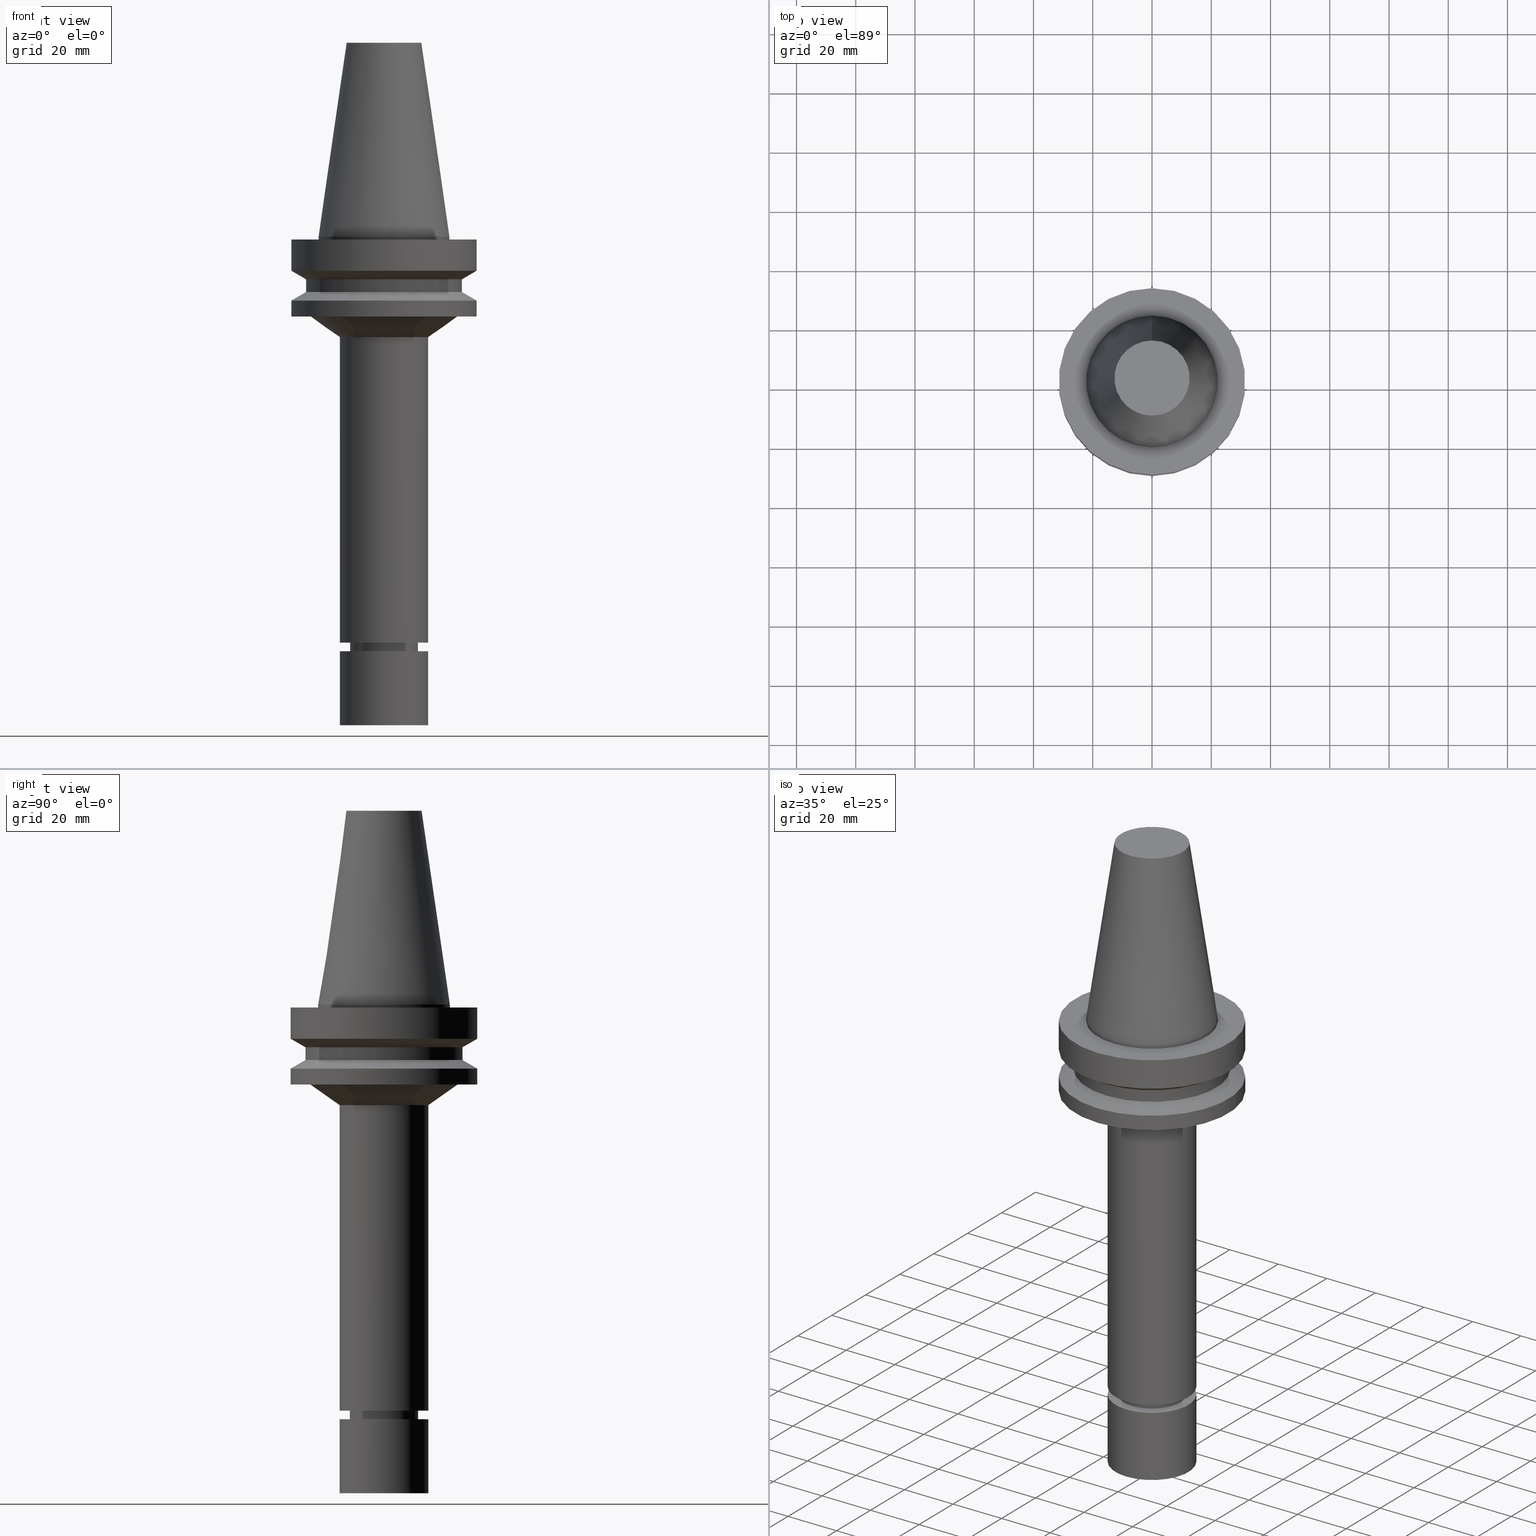
[diagram: canonical four-view strip — front | top / right | iso, engineering-drawing reading convention]
A machine part, canonical four-view strip (front | top / right | iso — engineering-drawing reading convention). The complete STEP part file that produces these views, byte-faithful:
ISO-10303-21;
HEADER;
FILE_DESCRIPTION((''),'1');
FILE_NAME('V:/90_\X2\53D65F9730C730FC30BF\X0\/00_\X2\6DE18DEF30C730FC30BF\X0\/ALL/BBT-BKUS\X2\FF76FF80FF9BFF78FF9E752852A05DE556F3\X0\201801/BBT40-MEGAER/BBT40-MEGAER16-165NL.stp','2018-02-07T01:51:51',(''),(''),'Spatial Interop R21 SP3','Kubotek KeyCreator 2011 V10.0.2 (22737)',' ');
FILE_SCHEMA(('automotive_design'));
ENDSEC;
DATA;
#1=MECHANICAL_DESIGN_GEOMETRIC_PRESENTATION_REPRESENTATION(' ',(#14,#15,#16,#17,#18,#19,#20,#21,#22,#23,#24,#25,#26,#27,#28,#29,#30,#31,#32,#33,#34,#35,#36,#37,#38,#39,#40,#41,#42,#43,#44,#45,#46,#47,#48,#49,#50,#51,#52,#53,#54,#55),#10);
#2=PRODUCT_DEFINITION_CONTEXT('',#56,'design');
#3=APPLICATION_PROTOCOL_DEFINITION('INTERNATIONAL STANDARD','automotive_design',1994,#56);
#4=PRODUCT_CATEGORY_RELATIONSHIP('NONE','NONE',#57,#58);
#5=SHAPE_DEFINITION_REPRESENTATION(#59,#60);
#6=PRODUCT_DEFINITION_CONTEXT('',#61,'design');
#7=APPLICATION_PROTOCOL_DEFINITION('INTERNATIONAL STANDARD','automotive_design',1994,#61);
#8=PRODUCT_CATEGORY_RELATIONSHIP('NONE','NONE',#62,#63);
#9=SHAPE_DEFINITION_REPRESENTATION(#64,#65);
#10= (GEOMETRIC_REPRESENTATION_CONTEXT(3)GLOBAL_UNCERTAINTY_ASSIGNED_CONTEXT((#68))GLOBAL_UNIT_ASSIGNED_CONTEXT((#70,#71,#72))REPRESENTATION_CONTEXT('NONE','WORKSPACE'));
#14=STYLED_ITEM('',(#74,#75),#76);
#15=STYLED_ITEM('',(#77),#78);
#16=STYLED_ITEM('',(#79,#80),#81);
#17=STYLED_ITEM('',(#82,#83),#84);
#18=STYLED_ITEM('',(#85,#86),#87);
#19=STYLED_ITEM('',(#88,#89),#90);
#20=STYLED_ITEM('',(#91,#92),#93);
#21=STYLED_ITEM('',(#94),#95);
#22=STYLED_ITEM('',(#96),#97);
#23=STYLED_ITEM('',(#98),#99);
#24=STYLED_ITEM('',(#100),#101);
#25=STYLED_ITEM('',(#102,#103),#104);
#26=STYLED_ITEM('',(#105,#106),#107);
#27=STYLED_ITEM('',(#108),#109);
#28=STYLED_ITEM('',(#110,#111),#112);
#29=STYLED_ITEM('',(#113,#114),#115);
#30=STYLED_ITEM('',(#116,#117),#118);
#31=STYLED_ITEM('',(#119,#120),#121);
#32=STYLED_ITEM('',(#122,#123),#124);
#33=STYLED_ITEM('',(#125),#126);
#34=STYLED_ITEM('',(#127),#128);
#35=STYLED_ITEM('',(#129),#130);
#36=STYLED_ITEM('',(#131),#132);
#37=STYLED_ITEM('',(#133,#134),#135);
#38=STYLED_ITEM('',(#136,#137),#138);
#39=STYLED_ITEM('',(#139),#140);
#40=STYLED_ITEM('',(#141),#142);
#41=STYLED_ITEM('',(#143),#144);
#42=STYLED_ITEM('',(#145,#146),#147);
#43=STYLED_ITEM('',(#148),#149);
#44=STYLED_ITEM('',(#150,#151),#152);
#45=STYLED_ITEM('',(#153),#154);
#46=STYLED_ITEM('',(#155),#156);
#47=STYLED_ITEM('',(#157,#158),#159);
#48=STYLED_ITEM('',(#160,#161),#162);
#49=STYLED_ITEM('',(#163,#164),#165);
#50=STYLED_ITEM('',(#166,#167),#168);
#51=STYLED_ITEM('',(#169),#170);
#52=STYLED_ITEM('',(#171),#172);
#53=STYLED_ITEM('',(#173,#174),#175);
#54=STYLED_ITEM('',(#176,#177),#178);
#55=STYLED_ITEM('',(#179),#180);
#56=APPLICATION_CONTEXT(' ');
#57=PRODUCT_CATEGORY('part','NONE');
#58=PRODUCT_RELATED_PRODUCT_CATEGORY('detail',' ',(#181));
#59=PRODUCT_DEFINITION_SHAPE('NONE','NONE',#182);
#60=ADVANCED_BREP_SHAPE_REPRESENTATION('Unnamed[1]',(#84,#183),#10);
#61=APPLICATION_CONTEXT(' ');
#62=PRODUCT_CATEGORY('part','NONE');
#63=PRODUCT_RELATED_PRODUCT_CATEGORY('detail',' ',(#184));
#64=PRODUCT_DEFINITION_SHAPE('NONE','NONE',#185);
#65=ADVANCED_BREP_SHAPE_REPRESENTATION('Unnamed[1]',(#81,#186),#10);
#68=UNCERTAINTY_MEASURE_WITH_UNIT(LENGTH_MEASURE(1.0E-006),#70,'','');
#70= (CONVERSION_BASED_UNIT('MILLIMETRE',#189)LENGTH_UNIT()NAMED_UNIT(#192));
#71= (NAMED_UNIT(#194)PLANE_ANGLE_UNIT()SI_UNIT($,.RADIAN.));
#72= (NAMED_UNIT(#194)SOLID_ANGLE_UNIT()SI_UNIT($,.STERADIAN.));
#74=PRESENTATION_STYLE_ASSIGNMENT((#200));
#75=PRESENTATION_STYLE_ASSIGNMENT((#201));
#76=ADVANCED_FACE('Unnamed[1]',(#202,#203),#204,.T.);
#77=PRESENTATION_STYLE_ASSIGNMENT((#205));
#78=EDGE_CURVE('Unnamed[1]',#206,#206,#207,.T.);
#79=PRESENTATION_STYLE_ASSIGNMENT((#208));
#80=PRESENTATION_STYLE_ASSIGNMENT((#209));
#81=MANIFOLD_SOLID_BREP('Unnamed[1]',#210);
#82=PRESENTATION_STYLE_ASSIGNMENT((#211));
#83=PRESENTATION_STYLE_ASSIGNMENT((#212));
#84=MANIFOLD_SOLID_BREP('Unnamed[1]',#213);
#85=PRESENTATION_STYLE_ASSIGNMENT((#214));
#86=PRESENTATION_STYLE_ASSIGNMENT((#215));
#87=ADVANCED_FACE('Unnamed[1]',(#216,#217),#218,.T.);
#88=PRESENTATION_STYLE_ASSIGNMENT((#219));
#89=PRESENTATION_STYLE_ASSIGNMENT((#220));
#90=ADVANCED_FACE('Unnamed[1]',(#221,#222),#223,.T.);
#91=PRESENTATION_STYLE_ASSIGNMENT((#224));
#92=PRESENTATION_STYLE_ASSIGNMENT((#225));
#93=ADVANCED_FACE('Unnamed[1]',(#226,#227),#228,.T.);
#94=PRESENTATION_STYLE_ASSIGNMENT((#229));
#95=EDGE_CURVE('Unnamed[1]',#230,#230,#231,.T.);
#96=PRESENTATION_STYLE_ASSIGNMENT((#232));
#97=EDGE_CURVE('Unnamed[1]',#233,#233,#234,.T.);
#98=PRESENTATION_STYLE_ASSIGNMENT((#235));
#99=EDGE_CURVE('Unnamed[1]',#236,#236,#237,.T.);
#100=PRESENTATION_STYLE_ASSIGNMENT((#238));
#101=EDGE_CURVE('Unnamed[1]',#239,#239,#240,.T.);
#102=PRESENTATION_STYLE_ASSIGNMENT((#241));
#103=PRESENTATION_STYLE_ASSIGNMENT((#242));
#104=ADVANCED_FACE('Unnamed[1]',(#243,#244),#245,.T.);
#105=PRESENTATION_STYLE_ASSIGNMENT((#246));
#106=PRESENTATION_STYLE_ASSIGNMENT((#247));
#107=ADVANCED_FACE('Unnamed[1]',(#248),#249,.T.);
#108=PRESENTATION_STYLE_ASSIGNMENT((#250));
#109=EDGE_CURVE('Unnamed[1]',#251,#251,#252,.T.);
#110=PRESENTATION_STYLE_ASSIGNMENT((#253));
#111=PRESENTATION_STYLE_ASSIGNMENT((#254));
#112=ADVANCED_FACE('Unnamed[1]',(#255,#256),#257,.T.);
#113=PRESENTATION_STYLE_ASSIGNMENT((#258));
#114=PRESENTATION_STYLE_ASSIGNMENT((#259));
#115=ADVANCED_FACE('Unnamed[1]',(#260,#261),#262,.T.);
#116=PRESENTATION_STYLE_ASSIGNMENT((#263));
#117=PRESENTATION_STYLE_ASSIGNMENT((#264));
#118=ADVANCED_FACE('Unnamed[1]',(#265,#266),#267,.T.);
#119=PRESENTATION_STYLE_ASSIGNMENT((#268));
#120=PRESENTATION_STYLE_ASSIGNMENT((#269));
#121=ADVANCED_FACE('Unnamed[1]',(#270,#271),#272,.T.);
#122=PRESENTATION_STYLE_ASSIGNMENT((#273));
#123=PRESENTATION_STYLE_ASSIGNMENT((#274));
#124=ADVANCED_FACE('Unnamed[1]',(#275,#276),#277,.T.);
#125=PRESENTATION_STYLE_ASSIGNMENT((#278));
#126=EDGE_CURVE('Unnamed[1]',#279,#279,#280,.T.);
#127=PRESENTATION_STYLE_ASSIGNMENT((#281));
#128=EDGE_CURVE('Unnamed[1]',#282,#282,#283,.T.);
#129=PRESENTATION_STYLE_ASSIGNMENT((#284));
#130=EDGE_CURVE('Unnamed[1]',#285,#285,#286,.T.);
#131=PRESENTATION_STYLE_ASSIGNMENT((#287));
#132=EDGE_CURVE('Unnamed[1]',#288,#288,#289,.T.);
#133=PRESENTATION_STYLE_ASSIGNMENT((#290));
#134=PRESENTATION_STYLE_ASSIGNMENT((#291));
#135=ADVANCED_FACE('Unnamed[1]',(#292),#293,.T.);
#136=PRESENTATION_STYLE_ASSIGNMENT((#294));
#137=PRESENTATION_STYLE_ASSIGNMENT((#295));
#138=ADVANCED_FACE('Unnamed[1]',(#296),#297,.T.);
#139=PRESENTATION_STYLE_ASSIGNMENT((#298));
#140=EDGE_CURVE('Unnamed[1]',#299,#299,#300,.T.);
#141=PRESENTATION_STYLE_ASSIGNMENT((#301));
#142=EDGE_CURVE('Unnamed[1]',#302,#302,#303,.T.);
#143=PRESENTATION_STYLE_ASSIGNMENT((#304));
#144=EDGE_CURVE('Unnamed[1]',#305,#305,#306,.T.);
#145=PRESENTATION_STYLE_ASSIGNMENT((#307));
#146=PRESENTATION_STYLE_ASSIGNMENT((#308));
#147=ADVANCED_FACE('Unnamed[1]',(#309,#310),#311,.T.);
#148=PRESENTATION_STYLE_ASSIGNMENT((#312));
#149=EDGE_CURVE('Unnamed[1]',#313,#313,#314,.T.);
#150=PRESENTATION_STYLE_ASSIGNMENT((#315));
#151=PRESENTATION_STYLE_ASSIGNMENT((#316));
#152=ADVANCED_FACE('Unnamed[1]',(#317),#318,.T.);
#153=PRESENTATION_STYLE_ASSIGNMENT((#319));
#154=EDGE_CURVE('Unnamed[1]',#320,#320,#321,.T.);
#155=PRESENTATION_STYLE_ASSIGNMENT((#322));
#156=EDGE_CURVE('Unnamed[1]',#323,#323,#324,.T.);
#157=PRESENTATION_STYLE_ASSIGNMENT((#325));
#158=PRESENTATION_STYLE_ASSIGNMENT((#326));
#159=ADVANCED_FACE('Unnamed[1]',(#327,#328),#329,.T.);
#160=PRESENTATION_STYLE_ASSIGNMENT((#330));
#161=PRESENTATION_STYLE_ASSIGNMENT((#331));
#162=ADVANCED_FACE('Unnamed[1]',(#332,#333),#334,.T.);
#163=PRESENTATION_STYLE_ASSIGNMENT((#335));
#164=PRESENTATION_STYLE_ASSIGNMENT((#336));
#165=ADVANCED_FACE('Unnamed[1]',(#337,#338),#339,.T.);
#166=PRESENTATION_STYLE_ASSIGNMENT((#340));
#167=PRESENTATION_STYLE_ASSIGNMENT((#341));
#168=ADVANCED_FACE('Unnamed[1]',(#342,#343),#344,.T.);
#169=PRESENTATION_STYLE_ASSIGNMENT((#345));
#170=EDGE_CURVE('Unnamed[1]',#346,#346,#347,.T.);
#171=PRESENTATION_STYLE_ASSIGNMENT((#348));
#172=EDGE_CURVE('Unnamed[1]',#349,#349,#350,.T.);
#173=PRESENTATION_STYLE_ASSIGNMENT((#351));
#174=PRESENTATION_STYLE_ASSIGNMENT((#352));
#175=ADVANCED_FACE('Unnamed[1]',(#353,#354),#355,.T.);
#176=PRESENTATION_STYLE_ASSIGNMENT((#356));
#177=PRESENTATION_STYLE_ASSIGNMENT((#357));
#178=ADVANCED_FACE('Unnamed[1]',(#358,#359),#360,.T.);
#179=PRESENTATION_STYLE_ASSIGNMENT((#361));
#180=EDGE_CURVE('Unnamed[1]',#362,#362,#363,.T.);
#181=PRODUCT('Unnamed[1]','Unnamed[1]','PART-Unnamed[1]-DESC',(#364));
#182=PRODUCT_DEFINITION('NONE','NONE',#365,#2);
#183=AXIS2_PLACEMENT_3D('',#366,#367,#368);
#184=PRODUCT('Unnamed[1]','Unnamed[1]','PART-Unnamed[1]-DESC',(#369));
#185=PRODUCT_DEFINITION('NONE','NONE',#370,#6);
#186=AXIS2_PLACEMENT_3D('',#371,#372,#373);
#189=LENGTH_MEASURE_WITH_UNIT(LENGTH_MEASURE(1.0),#374);
#192=DIMENSIONAL_EXPONENTS(1.0,0.0,0.0,0.0,0.0,0.0,0.0);
#194=DIMENSIONAL_EXPONENTS(0.0,0.0,0.0,0.0,0.0,0.0,0.0);
#200=SURFACE_STYLE_USAGE(.BOTH.,#375);
#201=CURVE_STYLE('',#376,POSITIVE_LENGTH_MEASURE(1000.0),#377);
#202=FACE_BOUND('',#378,.T.);
#203=FACE_BOUND('',#379,.T.);
#204=CONICAL_SURFACE('',#380,17.45625,0.144812498238936);
#205=CURVE_STYLE('',#381,POSITIVE_LENGTH_MEASURE(1000.0),#382);
#206=VERTEX_POINT('',#383);
#207=CIRCLE('',#384,14.9999999999999);
#208=SURFACE_STYLE_USAGE(.BOTH.,#385);
#209=CURVE_STYLE('',#386,POSITIVE_LENGTH_MEASURE(1000.0),#387);
#210=CLOSED_SHELL('',(#138,#135,#87));
#211=SURFACE_STYLE_USAGE(.BOTH.,#388);
#212=CURVE_STYLE('',#389,POSITIVE_LENGTH_MEASURE(1000.0),#390);
#213=CLOSED_SHELL('',(#107,#76,#121,#178,#168,#147,#124,#175,#93,#112,#165,#104,#159,#118,#90,#162,#115,#152));
#214=SURFACE_STYLE_USAGE(.BOTH.,#391);
#215=CURVE_STYLE('',#392,POSITIVE_LENGTH_MEASURE(1000.0),#393);
#216=FACE_BOUND('',#394,.T.);
#217=FACE_BOUND('',#395,.T.);
#218=CYLINDRICAL_SURFACE('',#396,15.0);
#219=SURFACE_STYLE_USAGE(.BOTH.,#397);
#220=CURVE_STYLE('',#398,POSITIVE_LENGTH_MEASURE(1000.0),#399);
#221=FACE_BOUND('',#400,.T.);
#222=FACE_BOUND('',#401,.T.);
#223=CONICAL_SURFACE('',#402,11.2500000000009,1.0471975511884);
#224=SURFACE_STYLE_USAGE(.BOTH.,#403);
#225=CURVE_STYLE('',#404,POSITIVE_LENGTH_MEASURE(1000.0),#405);
#226=FACE_BOUND('',#406,.T.);
#227=FACE_BOUND('',#407,.T.);
#228=CYLINDRICAL_SURFACE('',#408,31.5000000000005);
#229=CURVE_STYLE('',#409,POSITIVE_LENGTH_MEASURE(1000.0),#410);
#230=VERTEX_POINT('',#411);
#231=CIRCLE('',#412,12.6875000000001);
#232=CURVE_STYLE('',#413,POSITIVE_LENGTH_MEASURE(1000.0),#414);
#233=VERTEX_POINT('',#415);
#234=CIRCLE('',#416,11.4999999999906);
#235=CURVE_STYLE('',#417,POSITIVE_LENGTH_MEASURE(1000.0),#418);
#236=VERTEX_POINT('',#419);
#237=CIRCLE('',#420,15.0);
#238=CURVE_STYLE('',#421,POSITIVE_LENGTH_MEASURE(1000.0),#422);
#239=VERTEX_POINT('',#423);
#240=CIRCLE('',#424,15.0);
#241=SURFACE_STYLE_USAGE(.BOTH.,#425);
#242=CURVE_STYLE('',#426,POSITIVE_LENGTH_MEASURE(1000.0),#427);
#243=FACE_BOUND('',#428,.T.);
#244=FACE_BOUND('',#429,.T.);
#245=CYLINDRICAL_SURFACE('',#430,15.0000000000002);
#246=SURFACE_STYLE_USAGE(.BOTH.,#431);
#247=CURVE_STYLE('',#432,POSITIVE_LENGTH_MEASURE(1000.0),#433);
#248=FACE_OUTER_BOUND('',#434,.T.);
#249=PLANE('',#435);
#250=CURVE_STYLE('',#436,POSITIVE_LENGTH_MEASURE(1000.0),#437);
#251=VERTEX_POINT('',#438);
#252=CIRCLE('',#439,31.4999999999996);
#253=SURFACE_STYLE_USAGE(.BOTH.,#440);
#254=CURVE_STYLE('',#441,POSITIVE_LENGTH_MEASURE(1000.0),#442);
#255=FACE_BOUND('',#443,.T.);
#256=FACE_OUTER_BOUND('',#444,.T.);
#257=PLANE('',#445);
#258=SURFACE_STYLE_USAGE(.BOTH.,#446);
#259=CURVE_STYLE('',#447,POSITIVE_LENGTH_MEASURE(1000.0),#448);
#260=FACE_BOUND('',#449,.T.);
#261=FACE_BOUND('',#450,.T.);
#262=CONICAL_SURFACE('',#451,10.4499999999999,0.52359877559821);
#263=SURFACE_STYLE_USAGE(.BOTH.,#452);
#264=CURVE_STYLE('',#453,POSITIVE_LENGTH_MEASURE(1000.0),#454);
#265=FACE_BOUND('',#455,.T.);
#266=FACE_BOUND('',#456,.T.);
#267=CYLINDRICAL_SURFACE('',#457,11.4999999999963);
#268=SURFACE_STYLE_USAGE(.BOTH.,#458);
#269=CURVE_STYLE('',#459,POSITIVE_LENGTH_MEASURE(1000.0),#460);
#270=FACE_BOUND('',#461,.T.);
#271=FACE_BOUND('',#462,.T.);
#272=CYLINDRICAL_SURFACE('',#463,22.225);
#273=SURFACE_STYLE_USAGE(.BOTH.,#464);
#274=CURVE_STYLE('',#465,POSITIVE_LENGTH_MEASURE(1000.0),#466);
#275=FACE_BOUND('',#467,.T.);
#276=FACE_BOUND('',#468,.T.);
#277=CYLINDRICAL_SURFACE('',#469,26.4999999999997);
#278=CURVE_STYLE('',#470,POSITIVE_LENGTH_MEASURE(1000.0),#471);
#279=VERTEX_POINT('',#472);
#280=CIRCLE('',#473,31.5000000000003);
#281=CURVE_STYLE('',#474,POSITIVE_LENGTH_MEASURE(1000.0),#475);
#282=VERTEX_POINT('',#476);
#283=CIRCLE('',#477,11.500000000002);
#284=CURVE_STYLE('',#478,POSITIVE_LENGTH_MEASURE(1000.0),#479);
#285=VERTEX_POINT('',#480);
#286=CIRCLE('',#481,9.89999999999953);
#287=CURVE_STYLE('',#482,POSITIVE_LENGTH_MEASURE(1000.0),#483);
#288=VERTEX_POINT('',#484);
#289=CIRCLE('',#485,26.4999999999994);
#290=SURFACE_STYLE_USAGE(.BOTH.,#486);
#291=CURVE_STYLE('',#487,POSITIVE_LENGTH_MEASURE(1000.0),#488);
#292=FACE_OUTER_BOUND('',#489,.T.);
#293=PLANE('',#490);
#294=SURFACE_STYLE_USAGE(.BOTH.,#491);
#295=CURVE_STYLE('',#492,POSITIVE_LENGTH_MEASURE(1000.0),#493);
#296=FACE_OUTER_BOUND('',#494,.T.);
#297=PLANE('',#495);
#298=CURVE_STYLE('',#496,POSITIVE_LENGTH_MEASURE(1000.0),#497);
#299=VERTEX_POINT('',#498);
#300=CIRCLE('',#499,31.5000000000003);
#301=CURVE_STYLE('',#500,POSITIVE_LENGTH_MEASURE(1000.0),#501);
#302=VERTEX_POINT('',#502);
#303=CIRCLE('',#503,15.0000000000003);
#304=CURVE_STYLE('',#504,POSITIVE_LENGTH_MEASURE(1000.0),#505);
#305=VERTEX_POINT('',#506);
#306=CIRCLE('',#507,26.5);
#307=SURFACE_STYLE_USAGE(.BOTH.,#508);
#308=CURVE_STYLE('',#509,POSITIVE_LENGTH_MEASURE(1000.0),#510);
#309=FACE_BOUND('',#511,.T.);
#310=FACE_BOUND('',#512,.T.);
#311=CONICAL_SURFACE('',#513,28.9999999999999,1.04719755119657);
#312=CURVE_STYLE('',#514,POSITIVE_LENGTH_MEASURE(1000.0),#515);
#313=VERTEX_POINT('',#516);
#314=CIRCLE('',#517,22.225);
#315=SURFACE_STYLE_USAGE(.BOTH.,#518);
#316=CURVE_STYLE('',#519,POSITIVE_LENGTH_MEASURE(1000.0),#520);
#317=FACE_OUTER_BOUND('',#521,.T.);
#318=PLANE('',#522);
#319=CURVE_STYLE('',#523,POSITIVE_LENGTH_MEASURE(1000.0),#524);
#320=VERTEX_POINT('',#525);
#321=CIRCLE('',#526,24.8688249295048);
#322=CURVE_STYLE('',#527,POSITIVE_LENGTH_MEASURE(1000.0),#528);
#323=VERTEX_POINT('',#529);
#324=CIRCLE('',#530,22.225);
#325=SURFACE_STYLE_USAGE(.BOTH.,#531);
#326=CURVE_STYLE('',#532,POSITIVE_LENGTH_MEASURE(1000.0),#533);
#327=FACE_BOUND('',#534,.T.);
#328=FACE_OUTER_BOUND('',#535,.T.);
#329=PLANE('',#536);
#330=SURFACE_STYLE_USAGE(.BOTH.,#537);
#331=CURVE_STYLE('',#538,POSITIVE_LENGTH_MEASURE(1000.0),#539);
#332=FACE_BOUND('',#540,.T.);
#333=FACE_BOUND('',#541,.T.);
#334=CYLINDRICAL_SURFACE('',#542,11.0);
#335=SURFACE_STYLE_USAGE(.BOTH.,#543);
#336=CURVE_STYLE('',#544,POSITIVE_LENGTH_MEASURE(1000.0),#545);
#337=FACE_BOUND('',#546,.T.);
#338=FACE_BOUND('',#547,.T.);
#339=CONICAL_SURFACE('',#548,19.9344124647526,0.956240827688238);
#340=SURFACE_STYLE_USAGE(.BOTH.,#549);
#341=CURVE_STYLE('',#550,POSITIVE_LENGTH_MEASURE(1000.0),#551);
#342=FACE_BOUND('',#552,.T.);
#343=FACE_BOUND('',#553,.T.);
#344=CYLINDRICAL_SURFACE('',#554,31.5);
#345=CURVE_STYLE('',#555,POSITIVE_LENGTH_MEASURE(1000.0),#556);
#346=VERTEX_POINT('',#557);
#347=CIRCLE('',#558,31.5000000000006);
#348=CURVE_STYLE('',#559,POSITIVE_LENGTH_MEASURE(1000.0),#560);
#349=VERTEX_POINT('',#561);
#350=CIRCLE('',#562,10.9999999999998);
#351=SURFACE_STYLE_USAGE(.BOTH.,#563);
#352=CURVE_STYLE('',#564,POSITIVE_LENGTH_MEASURE(1000.0),#565);
#353=FACE_BOUND('',#566,.T.);
#354=FACE_BOUND('',#567,.T.);
#355=CONICAL_SURFACE('',#568,29.0000000000003,1.04719755119651);
#356=SURFACE_STYLE_USAGE(.BOTH.,#569);
#357=CURVE_STYLE('',#570,POSITIVE_LENGTH_MEASURE(1000.0),#571);
#358=FACE_OUTER_BOUND('',#572,.T.);
#359=FACE_BOUND('',#573,.T.);
#360=PLANE('',#574);
#361=CURVE_STYLE('',#575,POSITIVE_LENGTH_MEASURE(1000.0),#576);
#362=VERTEX_POINT('',#577);
#363=CIRCLE('',#578,11.0000000000002);
#364=PRODUCT_CONTEXT('',#56,'mechanical');
#365=PRODUCT_DEFINITION_FORMATION_WITH_SPECIFIED_SOURCE(' ','NONE',#181,.NOT_KNOWN.);
#366=CARTESIAN_POINT('',(0.0,0.0,0.0));
#367=DIRECTION('',(0.0,0.0,1.0));
#368=DIRECTION('',(1.0,0.0,0.0));
#369=PRODUCT_CONTEXT('',#61,'mechanical');
#370=PRODUCT_DEFINITION_FORMATION_WITH_SPECIFIED_SOURCE(' ','NONE',#184,.NOT_KNOWN.);
#371=CARTESIAN_POINT('',(0.0,0.0,0.0));
#372=DIRECTION('',(0.0,0.0,1.0));
#373=DIRECTION('',(1.0,0.0,0.0));
#374= (NAMED_UNIT(#192)LENGTH_UNIT()SI_UNIT(.MILLI.,.METRE.));
#375=SURFACE_SIDE_STYLE('',(#580));
#376=DRAUGHTING_PRE_DEFINED_CURVE_FONT('continuous');
#377=COLOUR_RGB('',0.0,1.0,0.0);
#378=EDGE_LOOP('',(#581));
#379=EDGE_LOOP('',(#582));
#380=AXIS2_PLACEMENT_3D('',#583,#584,#585);
#381=DRAUGHTING_PRE_DEFINED_CURVE_FONT('continuous');
#382=COLOUR_RGB('',0.0,1.0,0.0);
#383=CARTESIAN_POINT('',(1.01033360929657E-014,15.0,-165.0));
#384=AXIS2_PLACEMENT_3D('',#586,#587,#588);
#385=SURFACE_SIDE_STYLE('',(#589));
#386=DRAUGHTING_PRE_DEFINED_CURVE_FONT('continuous');
#387=COLOUR_RGB('',0.0,1.0,0.0);
#388=SURFACE_SIDE_STYLE('',(#590));
#389=DRAUGHTING_PRE_DEFINED_CURVE_FONT('continuous');
#390=COLOUR_RGB('',0.0,1.0,0.0);
#391=SURFACE_SIDE_STYLE('',(#591));
#392=DRAUGHTING_PRE_DEFINED_CURVE_FONT('continuous');
#393=COLOUR_RGB('',0.0,1.0,0.0);
#394=EDGE_LOOP('',(#592));
#395=EDGE_LOOP('',(#593));
#396=AXIS2_PLACEMENT_3D('',#594,#595,#596);
#397=SURFACE_SIDE_STYLE('',(#597));
#398=DRAUGHTING_PRE_DEFINED_CURVE_FONT('continuous');
#399=COLOUR_RGB('',0.0,1.0,0.0);
#400=EDGE_LOOP('',(#598));
#401=EDGE_LOOP('',(#599));
#402=AXIS2_PLACEMENT_3D('',#600,#601,#602);
#403=SURFACE_SIDE_STYLE('',(#603));
#404=DRAUGHTING_PRE_DEFINED_CURVE_FONT('continuous');
#405=COLOUR_RGB('',0.0,1.0,0.0);
#406=EDGE_LOOP('',(#604));
#407=EDGE_LOOP('',(#605));
#408=AXIS2_PLACEMENT_3D('',#606,#607,#608);
#409=DRAUGHTING_PRE_DEFINED_CURVE_FONT('continuous');
#410=COLOUR_RGB('',0.0,1.0,0.0);
#411=CARTESIAN_POINT('',(-4.00459503321185E-015,12.6875000000002,65.4000000000001));
#412=AXIS2_PLACEMENT_3D('',#609,#610,#611);
#413=DRAUGHTING_PRE_DEFINED_CURVE_FONT('continuous');
#414=COLOUR_RGB('',0.0,1.0,0.0);
#415=CARTESIAN_POINT('',(8.39495380815511E-015,11.4999999999907,-137.1));
#416=AXIS2_PLACEMENT_3D('',#612,#613,#614);
#417=DRAUGHTING_PRE_DEFINED_CURVE_FONT('continuous');
#418=COLOUR_RGB('',0.0,1.0,0.0);
#419=CARTESIAN_POINT('',(8.39495380815507E-015,15.0000000000001,-137.099999999999));
#420=AXIS2_PLACEMENT_3D('',#615,#616,#617);
#421=DRAUGHTING_PRE_DEFINED_CURVE_FONT('continuous');
#422=COLOUR_RGB('',0.0,1.0,0.0);
#423=CARTESIAN_POINT('',(8.57252759403147E-015,15.0000000000001,-140.0));
#424=AXIS2_PLACEMENT_3D('',#618,#619,#620);
#425=SURFACE_SIDE_STYLE('',(#621));
#426=DRAUGHTING_PRE_DEFINED_CURVE_FONT('continuous');
#427=COLOUR_RGB('',0.0,1.0,0.0);
#428=EDGE_LOOP('',(#622));
#429=EDGE_LOOP('',(#623));
#430=AXIS2_PLACEMENT_3D('',#624,#625,#626);
#431=SURFACE_SIDE_STYLE('',(#627));
#432=DRAUGHTING_PRE_DEFINED_CURVE_FONT('continuous');
#433=COLOUR_RGB('',0.0,1.0,0.0);
#434=EDGE_LOOP('',(#628));
#435=AXIS2_PLACEMENT_3D('',#629,#630,#631);
#436=DRAUGHTING_PRE_DEFINED_CURVE_FONT('continuous');
#437=COLOUR_RGB('',0.0,1.0,0.0);
#438=CARTESIAN_POINT('',(6.12323399573568E-017,31.4999999999997,-0.999999999999825));
#439=AXIS2_PLACEMENT_3D('',#632,#633,#634);
#440=SURFACE_SIDE_STYLE('',(#635));
#441=DRAUGHTING_PRE_DEFINED_CURVE_FONT('continuous');
#442=COLOUR_RGB('',0.0,1.0,0.0);
#443=EDGE_LOOP('',(#636));
#444=EDGE_LOOP('',(#637));
#445=AXIS2_PLACEMENT_3D('',#638,#639,#640);
#446=SURFACE_SIDE_STYLE('',(#641));
#447=DRAUGHTING_PRE_DEFINED_CURVE_FONT('continuous');
#448=COLOUR_RGB('',0.0,1.0,0.0);
#449=EDGE_LOOP('',(#642));
#450=EDGE_LOOP('',(#643));
#451=AXIS2_PLACEMENT_3D('',#644,#645,#646);
#452=SURFACE_SIDE_STYLE('',(#647));
#453=DRAUGHTING_PRE_DEFINED_CURVE_FONT('continuous');
#454=COLOUR_RGB('',0.0,1.0,0.0);
#455=EDGE_LOOP('',(#648));
#456=EDGE_LOOP('',(#649));
#457=AXIS2_PLACEMENT_3D('',#650,#651,#652);
#458=SURFACE_SIDE_STYLE('',(#653));
#459=DRAUGHTING_PRE_DEFINED_CURVE_FONT('continuous');
#460=COLOUR_RGB('',0.0,1.0,0.0);
#461=EDGE_LOOP('',(#654));
#462=EDGE_LOOP('',(#655));
#463=AXIS2_PLACEMENT_3D('',#656,#657,#658);
#464=SURFACE_SIDE_STYLE('',(#659));
#465=DRAUGHTING_PRE_DEFINED_CURVE_FONT('continuous');
#466=COLOUR_RGB('',0.0,1.0,0.0);
#467=EDGE_LOOP('',(#660));
#468=EDGE_LOOP('',(#661));
#469=AXIS2_PLACEMENT_3D('',#662,#663,#664);
#470=DRAUGHTING_PRE_DEFINED_CURVE_FONT('continuous');
#471=COLOUR_RGB('',0.0,1.0,0.0);
#472=CARTESIAN_POINT('',(7.08182973902924E-016,31.5000000000004,-11.5655056526664));
#473=AXIS2_PLACEMENT_3D('',#665,#666,#667);
#474=DRAUGHTING_PRE_DEFINED_CURVE_FONT('continuous');
#475=COLOUR_RGB('',0.0,1.0,0.0);
#476=CARTESIAN_POINT('',(8.75079482791581E-015,11.5000000000021,-142.911324865397));
#477=AXIS2_PLACEMENT_3D('',#668,#669,#670);
#478=DRAUGHTING_PRE_DEFINED_CURVE_FONT('continuous');
#479=COLOUR_RGB('',0.0,1.0,0.0);
#480=CARTESIAN_POINT('',(9.56449150134077E-015,9.8999999999996,-156.199999999999));
#481=AXIS2_PLACEMENT_3D('',#671,#672,#673);
#482=DRAUGHTING_PRE_DEFINED_CURVE_FONT('continuous');
#483=COLOUR_RGB('',0.0,1.0,0.0);
#484=CARTESIAN_POINT('',(8.8494551369045E-016,26.4999999999995,-14.4522569986152));
#485=AXIS2_PLACEMENT_3D('',#674,#675,#676);
#486=SURFACE_SIDE_STYLE('',(#677));
#487=DRAUGHTING_PRE_DEFINED_CURVE_FONT('continuous');
#488=COLOUR_RGB('',0.0,1.0,0.0);
#489=EDGE_LOOP('',(#678));
#490=AXIS2_PLACEMENT_3D('',#679,#680,#681);
#491=SURFACE_SIDE_STYLE('',(#682));
#492=DRAUGHTING_PRE_DEFINED_CURVE_FONT('continuous');
#493=COLOUR_RGB('',0.0,1.0,0.0);
#494=EDGE_LOOP('',(#683));
#495=AXIS2_PLACEMENT_3D('',#684,#685,#686);
#496=DRAUGHTING_PRE_DEFINED_CURVE_FONT('continuous');
#497=COLOUR_RGB('',0.0,1.0,0.0);
#498=CARTESIAN_POINT('',(1.65327317884891E-015,31.5000000000004,-26.9999999999998));
#499=AXIS2_PLACEMENT_3D('',#687,#688,#689);
#500=DRAUGHTING_PRE_DEFINED_CURVE_FONT('continuous');
#501=COLOUR_RGB('',0.0,1.0,0.0);
#502=CARTESIAN_POINT('',(2.07973442388957E-015,15.0000000000004,-33.9646406676204));
#503=AXIS2_PLACEMENT_3D('',#690,#691,#692);
#504=DRAUGHTING_PRE_DEFINED_CURVE_FONT('continuous');
#505=COLOUR_RGB('',0.0,1.0,0.0);
#506=CARTESIAN_POINT('',(1.1479681728942E-015,26.5,-18.7477430013855));
#507=AXIS2_PLACEMENT_3D('',#693,#694,#695);
#508=SURFACE_SIDE_STYLE('',(#696));
#509=DRAUGHTING_PRE_DEFINED_CURVE_FONT('continuous');
#510=COLOUR_RGB('',0.0,1.0,0.0);
#511=EDGE_LOOP('',(#697));
#512=EDGE_LOOP('',(#698));
#513=AXIS2_PLACEMENT_3D('',#699,#700,#701);
#514=DRAUGHTING_PRE_DEFINED_CURVE_FONT('continuous');
#515=COLOUR_RGB('',0.0,1.0,0.0);
#516=CARTESIAN_POINT('',(1.71319921032766E-029,22.2250000000001,-2.8153873565375E-013));
#517=AXIS2_PLACEMENT_3D('',#702,#703,#704);
#518=SURFACE_SIDE_STYLE('',(#705));
#519=DRAUGHTING_PRE_DEFINED_CURVE_FONT('continuous');
#520=COLOUR_RGB('',0.0,1.0,0.0);
#521=EDGE_LOOP('',(#706));
#522=AXIS2_PLACEMENT_3D('',#707,#708,#709);
#523=DRAUGHTING_PRE_DEFINED_CURVE_FONT('continuous');
#524=COLOUR_RGB('',0.0,1.0,0.0);
#525=CARTESIAN_POINT('',(1.65327317884891E-015,24.8688249295049,-26.9999999999998));
#526=AXIS2_PLACEMENT_3D('',#710,#711,#712);
#527=DRAUGHTING_PRE_DEFINED_CURVE_FONT('continuous');
#528=COLOUR_RGB('',0.0,1.0,0.0);
#529=CARTESIAN_POINT('',(6.12323399573622E-017,22.2250000000001,-0.999999999999912));
#530=AXIS2_PLACEMENT_3D('',#713,#714,#715);
#531=SURFACE_SIDE_STYLE('',(#716));
#532=DRAUGHTING_PRE_DEFINED_CURVE_FONT('continuous');
#533=COLOUR_RGB('',0.0,1.0,0.0);
#534=EDGE_LOOP('',(#717));
#535=EDGE_LOOP('',(#718));
#536=AXIS2_PLACEMENT_3D('',#719,#720,#721);
#537=SURFACE_SIDE_STYLE('',(#722));
#538=DRAUGHTING_PRE_DEFINED_CURVE_FONT('continuous');
#539=COLOUR_RGB('',0.0,1.0,0.0);
#540=EDGE_LOOP('',(#723));
#541=EDGE_LOOP('',(#724));
#542=AXIS2_PLACEMENT_3D('',#725,#726,#727);
#543=SURFACE_SIDE_STYLE('',(#728));
#544=DRAUGHTING_PRE_DEFINED_CURVE_FONT('continuous');
#545=COLOUR_RGB('',0.0,1.0,0.0);
#546=EDGE_LOOP('',(#729));
#547=EDGE_LOOP('',(#730));
#548=AXIS2_PLACEMENT_3D('',#731,#732,#733);
#549=SURFACE_SIDE_STYLE('',(#734));
#550=DRAUGHTING_PRE_DEFINED_CURVE_FONT('continuous');
#551=COLOUR_RGB('',0.0,1.0,0.0);
#552=EDGE_LOOP('',(#735));
#553=EDGE_LOOP('',(#736));
#554=AXIS2_PLACEMENT_3D('',#737,#738,#739);
#555=DRAUGHTING_PRE_DEFINED_CURVE_FONT('continuous');
#556=COLOUR_RGB('',0.0,1.0,0.0);
#557=CARTESIAN_POINT('',(1.32473071268174E-015,31.5000000000007,-21.6344943473346));
#558=AXIS2_PLACEMENT_3D('',#740,#741,#742);
#559=DRAUGHTING_PRE_DEFINED_CURVE_FONT('continuous');
#560=COLOUR_RGB('',0.0,1.0,0.0);
#561=CARTESIAN_POINT('',(8.76847108189496E-015,10.9999999999999,-143.199999999999));
#562=AXIS2_PLACEMENT_3D('',#743,#744,#745);
#563=SURFACE_SIDE_STYLE('',(#746));
#564=DRAUGHTING_PRE_DEFINED_CURVE_FONT('continuous');
#565=COLOUR_RGB('',0.0,1.0,0.0);
#566=EDGE_LOOP('',(#747));
#567=EDGE_LOOP('',(#748));
#568=AXIS2_PLACEMENT_3D('',#749,#750,#751);
#569=SURFACE_SIDE_STYLE('',(#752));
#570=DRAUGHTING_PRE_DEFINED_CURVE_FONT('continuous');
#571=COLOUR_RGB('',0.0,1.0,0.0);
#572=EDGE_LOOP('',(#753));
#573=EDGE_LOOP('',(#754));
#574=AXIS2_PLACEMENT_3D('',#755,#756,#757);
#575=DRAUGHTING_PRE_DEFINED_CURVE_FONT('continuous');
#576=COLOUR_RGB('',0.0,1.0,0.0);
#577=CARTESIAN_POINT('',(9.44782822508094E-015,11.0000000000003,-154.294744111672));
#578=AXIS2_PLACEMENT_3D('',#758,#759,#760);
#580=SURFACE_STYLE_FILL_AREA(#761);
#581=ORIENTED_EDGE('',*,*,#149,.F.);
#582=ORIENTED_EDGE('',*,*,#95,.T.);
#583=CARTESIAN_POINT('',(-2.00229751660592E-015,7.4951768461135E-014,32.6999999999999));
#584=DIRECTION('',(6.12323399573677E-017,-6.57737920629595E-017,-1.0));
#585=DIRECTION('',(-7.9966953489125E-034,1.0,-6.57737920629595E-017));
#586=CARTESIAN_POINT('',(1.01033360929657E-014,6.19482897702596E-014,-165.0));
#587=DIRECTION('',(6.12323399573677E-017,-6.57737920631027E-017,-1.0));
#588=DIRECTION('',(-7.99669534875906E-034,1.0,-6.57737920631027E-017));
#589=SURFACE_STYLE_FILL_AREA(#762);
#590=SURFACE_STYLE_FILL_AREA(#763);
#591=SURFACE_STYLE_FILL_AREA(#764);
#592=ORIENTED_EDGE('',*,*,#78,.F.);
#593=ORIENTED_EDGE('',*,*,#101,.T.);
#594=CARTESIAN_POINT('',(9.33793184349857E-015,6.27704621710484E-014,-152.5));
#595=DIRECTION('',(6.12323399573677E-017,-6.57737920631027E-017,-1.0));
#596=DIRECTION('',(-7.99669534875906E-034,1.0,-6.57737920631027E-017));
#597=SURFACE_STYLE_FILL_AREA(#765);
#598=ORIENTED_EDGE('',*,*,#172,.F.);
#599=ORIENTED_EDGE('',*,*,#128,.T.);
#600=CARTESIAN_POINT('',(8.75963295490539E-015,6.33916520663738E-014,-143.055662432698));
#601=DIRECTION('',(-6.12323399573677E-017,6.57737920631949E-017,1.0));
#602=DIRECTION('',(-7.99669534866594E-034,1.0,-6.57737920631949E-017));
#603=SURFACE_STYLE_FILL_AREA(#766);
#604=ORIENTED_EDGE('',*,*,#140,.F.);
#605=ORIENTED_EDGE('',*,*,#170,.T.);
#606=CARTESIAN_POINT('',(1.48900194576533E-015,7.12015279015237E-014,-24.3172471736672));
#607=DIRECTION('',(6.12323399573677E-017,-6.57737920631993E-017,-1.0));
#608=DIRECTION('',(-7.9966953489398E-034,1.0,-6.57737920631993E-017));
#609=CARTESIAN_POINT('',(-4.00459503321185E-015,7.71025714615985E-014,65.4000000000001));
#610=DIRECTION('',(6.12323399573677E-017,-6.57737920631149E-017,-1.0));
#611=DIRECTION('',(-7.99669534868852E-034,1.0,-6.57737920631149E-017));
#612=CARTESIAN_POINT('',(8.39495380815511E-015,6.37833785688201E-014,-137.1));
#613=DIRECTION('',(6.12323399573676E-017,-6.57737920630665E-017,-1.0));
#614=DIRECTION('',(-7.9966953488672E-034,1.0,-6.57737920630665E-017));
#615=CARTESIAN_POINT('',(8.39495380815507E-015,6.37833785688202E-014,-137.099999999999));
#616=DIRECTION('',(6.12323399573677E-017,-6.57737920632003E-017,-1.0));
#617=DIRECTION('',(-7.99669534874632E-034,1.0,-6.57737920632003E-017));
#618=CARTESIAN_POINT('',(8.57252759403147E-015,6.35926345718371E-014,-140.0));
#619=DIRECTION('',(6.12323399573677E-017,-6.57737920631027E-017,-1.0));
#620=DIRECTION('',(-7.99669534875906E-034,1.0,-6.57737920631027E-017));
#621=SURFACE_STYLE_FILL_AREA(#767);
#622=ORIENTED_EDGE('',*,*,#99,.F.);
#623=ORIENTED_EDGE('',*,*,#142,.T.);
#624=CARTESIAN_POINT('',(5.23734411602232E-015,6.71751804083608E-014,-85.5323203338099));
#625=DIRECTION('',(6.12323399573677E-017,-6.57737920631996E-017,-1.0));
#626=DIRECTION('',(-7.99669534874623E-034,1.0,-6.57737920631996E-017));
#627=SURFACE_STYLE_FILL_AREA(#768);
#628=ORIENTED_EDGE('',*,*,#95,.F.);
#629=CARTESIAN_POINT('',(-4.00459503321185E-015,6.34375000000014,65.4000000000001));
#630=DIRECTION('',(-6.12323399573677E-017,9.97602686800683E-016,1.0));
#631=DIRECTION('',(-5.62583941297938E-032,-1.0,9.97602686800683E-016));
#632=CARTESIAN_POINT('',(6.12323399573572E-017,7.27351916686084E-014,-0.999999999999829));
#633=DIRECTION('',(6.12323399573677E-017,-6.57737920632011E-017,-1.0));
#634=DIRECTION('',(-7.99669534871225E-034,1.0,-6.57737920632011E-017));
#635=SURFACE_STYLE_FILL_AREA(#769);
#636=ORIENTED_EDGE('',*,*,#154,.F.);
#637=ORIENTED_EDGE('',*,*,#140,.T.);
#638=CARTESIAN_POINT('',(1.65327317884891E-015,28.1844124647526,-26.9999999999998));
#639=DIRECTION('',(6.12323399573677E-017,3.33702044811439E-015,-1.0));
#640=DIRECTION('',(-2.09160723254396E-031,1.0,3.33702044811439E-015));
#641=SURFACE_STYLE_FILL_AREA(#770);
#642=ORIENTED_EDGE('',*,*,#130,.F.);
#643=ORIENTED_EDGE('',*,*,#180,.T.);
#644=CARTESIAN_POINT('',(9.50615986321086E-015,6.25897570927279E-014,-155.247372055835));
#645=DIRECTION('',(-6.12323399573676E-017,6.57737920632424E-017,1.0));
#646=DIRECTION('',(-7.99669534849812E-034,1.0,-6.57737920632424E-017));
#647=SURFACE_STYLE_FILL_AREA(#771);
#648=ORIENTED_EDGE('',*,*,#128,.F.);
#649=ORIENTED_EDGE('',*,*,#97,.T.);
#650=CARTESIAN_POINT('',(8.57287431803546E-015,6.35922621321663E-014,-140.005662432699));
#651=DIRECTION('',(6.12323399573677E-017,-6.5773792063034E-017,-1.0));
#652=DIRECTION('',(-7.99669534886325E-034,1.0,-6.5773792063034E-017));
#653=SURFACE_STYLE_FILL_AREA(#772);
#654=ORIENTED_EDGE('',*,*,#156,.F.);
#655=ORIENTED_EDGE('',*,*,#149,.T.);
#656=CARTESIAN_POINT('',(3.06161699786908E-017,7.276807856464E-014,-0.500000000000114));
#657=DIRECTION('',(6.12323399573677E-017,-6.57737920631616E-017,-1.0));
#658=DIRECTION('',(-7.99669534887895E-034,1.0,-6.57737920631616E-017));
#659=SURFACE_STYLE_FILL_AREA(#773);
#660=ORIENTED_EDGE('',*,*,#144,.F.);
#661=ORIENTED_EDGE('',*,*,#132,.T.);
#662=CARTESIAN_POINT('',(1.01645684329232E-015,7.1709120512424E-014,-16.6000000000003));
#663=DIRECTION('',(6.12323399573677E-017,-6.5773792062876E-017,-1.0));
#664=DIRECTION('',(-7.99669534893143E-034,1.0,-6.5773792062876E-017));
#665=CARTESIAN_POINT('',(7.08182973902924E-016,7.20402582967684E-014,-11.5655056526664));
#666=DIRECTION('',(6.12323399573677E-017,-6.57737920631997E-017,-1.0));
#667=DIRECTION('',(-7.99669534871208E-034,1.0,-6.57737920631997E-017));
#668=CARTESIAN_POINT('',(8.75079482791581E-015,6.34011456955124E-014,-142.911324865397));
#669=DIRECTION('',(6.12323399573677E-017,-6.57737920630015E-017,-1.0));
#670=DIRECTION('',(-7.9966953488593E-034,1.0,-6.57737920630015E-017));
#671=CARTESIAN_POINT('',(9.56449150134077E-015,6.25270991404149E-014,-156.199999999999));
#672=DIRECTION('',(6.12323399573677E-017,-6.57737920630729E-017,-1.0));
#673=DIRECTION('',(-7.99669534871771E-034,1.0,-6.57737920630729E-017));
#674=CARTESIAN_POINT('',(8.84945513690451E-016,7.18503857140021E-014,-14.4522569986152));
#675=DIRECTION('',(6.12323399573677E-017,-6.57737920628767E-017,-1.0));
#676=DIRECTION('',(-7.99669534893151E-034,1.0,-6.57737920628767E-017));
#677=SURFACE_STYLE_FILL_AREA(#774);
#678=ORIENTED_EDGE('',*,*,#101,.F.);
#679=CARTESIAN_POINT('',(8.57252759403147E-015,7.50000000000007,-140.0));
#680=DIRECTION('',(-6.12323399573677E-017,-1.22464679914735E-016,1.0));
#681=DIRECTION('',(1.23259516440783E-032,-1.0,-1.22464679914735E-016));
#682=SURFACE_STYLE_FILL_AREA(#775);
#683=ORIENTED_EDGE('',*,*,#78,.T.);
#684=CARTESIAN_POINT('',(1.01033360929657E-014,7.50000000000004,-165.0));
#685=DIRECTION('',(6.12323399573677E-017,1.22464679914735E-016,-1.0));
#686=DIRECTION('',(-1.23259516440783E-032,1.0,1.22464679914735E-016));
#687=CARTESIAN_POINT('',(1.65327317884891E-015,7.10250730749678E-014,-26.9999999999998));
#688=DIRECTION('',(6.12323399573677E-017,-6.57737920631997E-017,-1.0));
#689=DIRECTION('',(-7.99669534893984E-034,1.0,-6.57737920631997E-017));
#690=CARTESIAN_POINT('',(2.07973442388957E-015,7.05669822479015E-014,-33.9646406676204));
#691=DIRECTION('',(6.12323399573677E-017,-6.57737920631989E-017,-1.0));
#692=DIRECTION('',(-7.99669534874614E-034,1.0,-6.57737920631989E-017));
#693=CARTESIAN_POINT('',(1.1479681728942E-015,7.15678553108459E-014,-18.7477430013855));
#694=DIRECTION('',(6.12323399573677E-017,-6.57737920628753E-017,-1.0));
#695=DIRECTION('',(-7.99669534920208E-034,1.0,-6.57737920628753E-017));
#696=SURFACE_STYLE_FILL_AREA(#776);
#697=ORIENTED_EDGE('',*,*,#132,.F.);
#698=ORIENTED_EDGE('',*,*,#126,.T.);
#699=CARTESIAN_POINT('',(7.96564243796687E-016,7.19453220053852E-014,-13.0088813256408));
#700=DIRECTION('',(-6.12323399573677E-017,6.57737920630521E-017,1.0));
#701=DIRECTION('',(-7.99669534868863E-034,1.0,-6.57737920630521E-017));
#702=CARTESIAN_POINT('',(1.74032777401202E-029,7.28009654606715E-014,-2.8421709430404E-013));
#703=DIRECTION('',(6.12323399573677E-017,-6.57737920631616E-017,-1.0));
#704=DIRECTION('',(-7.99669534887895E-034,1.0,-6.57737920631616E-017));
#705=SURFACE_STYLE_FILL_AREA(#777);
#706=ORIENTED_EDGE('',*,*,#130,.T.);
#707=CARTESIAN_POINT('',(9.5644915013408E-015,4.94999999999983,-156.2));
#708=DIRECTION('',(6.12323399573677E-017,8.62488568932643E-014,-1.0));
#709=DIRECTION('',(-5.28604647895348E-030,1.0,8.62488568932643E-014));
#710=CARTESIAN_POINT('',(1.65327317884891E-015,7.10250730749678E-014,-26.9999999999998));
#711=DIRECTION('',(6.12323399573677E-017,-6.57737920632305E-017,-1.0));
#712=DIRECTION('',(-7.996695348925E-034,1.0,-6.57737920632305E-017));
#713=CARTESIAN_POINT('',(6.12323399573624E-017,7.27351916686084E-014,-0.999999999999915));
#714=DIRECTION('',(6.12323399573677E-017,-6.57737920631616E-017,-1.0));
#715=DIRECTION('',(-7.99669534887895E-034,1.0,-6.57737920631616E-017));
#716=SURFACE_STYLE_FILL_AREA(#778);
#717=ORIENTED_EDGE('',*,*,#97,.F.);
#718=ORIENTED_EDGE('',*,*,#99,.T.);
#719=CARTESIAN_POINT('',(8.39495380815509E-015,13.2499999999954,-137.1));
#720=DIRECTION('',(6.12323399573677E-017,2.03134674896543E-013,-1.0));
#721=DIRECTION('',(-1.24432386231253E-029,1.0,2.03134674896543E-013));
#722=SURFACE_STYLE_FILL_AREA(#779);
#723=ORIENTED_EDGE('',*,*,#180,.F.);
#724=ORIENTED_EDGE('',*,*,#172,.T.);
#725=CARTESIAN_POINT('',(9.10814965348795E-015,6.3017286741138E-014,-148.747372055835));
#726=DIRECTION('',(6.12323399573677E-017,-6.57737920631023E-017,-1.0));
#727=DIRECTION('',(-7.99669534878979E-034,1.0,-6.57737920631023E-017));
#728=SURFACE_STYLE_FILL_AREA(#780);
#729=ORIENTED_EDGE('',*,*,#142,.F.);
#730=ORIENTED_EDGE('',*,*,#154,.T.);
#731=CARTESIAN_POINT('',(1.86650380136924E-015,7.07960276614346E-014,-30.4823203338101));
#732=DIRECTION('',(-6.12323399573677E-017,6.57737920632186E-017,1.0));
#733=DIRECTION('',(-7.99669534876773E-034,1.0,-6.57737920632186E-017));
#734=SURFACE_STYLE_FILL_AREA(#781);
#735=ORIENTED_EDGE('',*,*,#126,.F.);
#736=ORIENTED_EDGE('',*,*,#109,.T.);
#737=CARTESIAN_POINT('',(3.8470765693014E-016,7.23877249826884E-014,-6.28275282633308));
#738=DIRECTION('',(6.12323399573676E-017,-6.57737920632004E-017,-1.0));
#739=DIRECTION('',(-7.99669534871216E-034,1.0,-6.57737920632004E-017));
#740=CARTESIAN_POINT('',(1.32473071268174E-015,7.13779827280796E-014,-21.6344943473347));
#741=DIRECTION('',(6.12323399573677E-017,-6.5773792063199E-017,-1.0));
#742=DIRECTION('',(-7.99669534871199E-034,1.0,-6.5773792063199E-017));
#743=CARTESIAN_POINT('',(8.76847108189496E-015,6.33821584372353E-014,-143.199999999999));
#744=DIRECTION('',(6.12323399573677E-017,-6.57737920631034E-017,-1.0));
#745=DIRECTION('',(-7.99669534878992E-034,1.0,-6.57737920631034E-017));
#746=SURFACE_STYLE_FILL_AREA(#782);
#747=ORIENTED_EDGE('',*,*,#170,.F.);
#748=ORIENTED_EDGE('',*,*,#144,.T.);
#749=CARTESIAN_POINT('',(1.23634944278797E-015,7.14729190194627E-014,-20.1911186743601));
#750=DIRECTION('',(6.12323399573677E-017,-6.57737920630511E-017,-1.0));
#751=DIRECTION('',(-7.99669534868851E-034,1.0,-6.57737920630511E-017));
#752=SURFACE_STYLE_FILL_AREA(#783);
#753=ORIENTED_EDGE('',*,*,#109,.F.);
#754=ORIENTED_EDGE('',*,*,#156,.T.);
#755=CARTESIAN_POINT('',(6.12323399573595E-017,26.8624999999999,-0.999999999999869));
#756=DIRECTION('',(-6.12323399573677E-017,-9.35138060429241E-015,1.0));
#757=DIRECTION('',(5.77434068963536E-031,-1.0,-9.35138060429241E-015));
#758=CARTESIAN_POINT('',(9.44782822508094E-015,6.26524150450408E-014,-154.294744111672));
#759=DIRECTION('',(6.12323399573676E-017,-6.57737920631013E-017,-1.0));
#760=DIRECTION('',(-7.99669534878966E-034,1.0,-6.57737920631013E-017));
#761=FILL_AREA_STYLE('',(#784));
#762=FILL_AREA_STYLE('',(#785));
#763=FILL_AREA_STYLE('',(#786));
#764=FILL_AREA_STYLE('',(#787));
#765=FILL_AREA_STYLE('',(#788));
#766=FILL_AREA_STYLE('',(#789));
#767=FILL_AREA_STYLE('',(#790));
#768=FILL_AREA_STYLE('',(#791));
#769=FILL_AREA_STYLE('',(#792));
#770=FILL_AREA_STYLE('',(#793));
#771=FILL_AREA_STYLE('',(#794));
#772=FILL_AREA_STYLE('',(#795));
#773=FILL_AREA_STYLE('',(#796));
#774=FILL_AREA_STYLE('',(#797));
#775=FILL_AREA_STYLE('',(#798));
#776=FILL_AREA_STYLE('',(#799));
#777=FILL_AREA_STYLE('',(#800));
#778=FILL_AREA_STYLE('',(#801));
#779=FILL_AREA_STYLE('',(#802));
#780=FILL_AREA_STYLE('',(#803));
#781=FILL_AREA_STYLE('',(#804));
#782=FILL_AREA_STYLE('',(#805));
#783=FILL_AREA_STYLE('',(#806));
#784=FILL_AREA_STYLE_COLOUR('',#807);
#785=FILL_AREA_STYLE_COLOUR('',#808);
#786=FILL_AREA_STYLE_COLOUR('',#809);
#787=FILL_AREA_STYLE_COLOUR('',#810);
#788=FILL_AREA_STYLE_COLOUR('',#811);
#789=FILL_AREA_STYLE_COLOUR('',#812);
#790=FILL_AREA_STYLE_COLOUR('',#813);
#791=FILL_AREA_STYLE_COLOUR('',#814);
#792=FILL_AREA_STYLE_COLOUR('',#815);
#793=FILL_AREA_STYLE_COLOUR('',#816);
#794=FILL_AREA_STYLE_COLOUR('',#817);
#795=FILL_AREA_STYLE_COLOUR('',#818);
#796=FILL_AREA_STYLE_COLOUR('',#819);
#797=FILL_AREA_STYLE_COLOUR('',#820);
#798=FILL_AREA_STYLE_COLOUR('',#821);
#799=FILL_AREA_STYLE_COLOUR('',#822);
#800=FILL_AREA_STYLE_COLOUR('',#823);
#801=FILL_AREA_STYLE_COLOUR('',#824);
#802=FILL_AREA_STYLE_COLOUR('',#825);
#803=FILL_AREA_STYLE_COLOUR('',#826);
#804=FILL_AREA_STYLE_COLOUR('',#827);
#805=FILL_AREA_STYLE_COLOUR('',#828);
#806=FILL_AREA_STYLE_COLOUR('',#829);
#807=COLOUR_RGB('',0.0,1.0,0.0);
#808=COLOUR_RGB('',0.0,1.0,0.0);
#809=COLOUR_RGB('',0.0,1.0,0.0);
#810=COLOUR_RGB('',0.0,1.0,0.0);
#811=COLOUR_RGB('',0.0,1.0,0.0);
#812=COLOUR_RGB('',0.0,1.0,0.0);
#813=COLOUR_RGB('',0.0,1.0,0.0);
#814=COLOUR_RGB('',0.0,1.0,0.0);
#815=COLOUR_RGB('',0.0,1.0,0.0);
#816=COLOUR_RGB('',0.0,1.0,0.0);
#817=COLOUR_RGB('',0.0,1.0,0.0);
#818=COLOUR_RGB('',0.0,1.0,0.0);
#819=COLOUR_RGB('',0.0,1.0,0.0);
#820=COLOUR_RGB('',0.0,1.0,0.0);
#821=COLOUR_RGB('',0.0,1.0,0.0);
#822=COLOUR_RGB('',0.0,1.0,0.0);
#823=COLOUR_RGB('',0.0,1.0,0.0);
#824=COLOUR_RGB('',0.0,1.0,0.0);
#825=COLOUR_RGB('',0.0,1.0,0.0);
#826=COLOUR_RGB('',0.0,1.0,0.0);
#827=COLOUR_RGB('',0.0,1.0,0.0);
#828=COLOUR_RGB('',0.0,1.0,0.0);
#829=COLOUR_RGB('',0.0,1.0,0.0);
ENDSEC;
END-ISO-10303-21;
